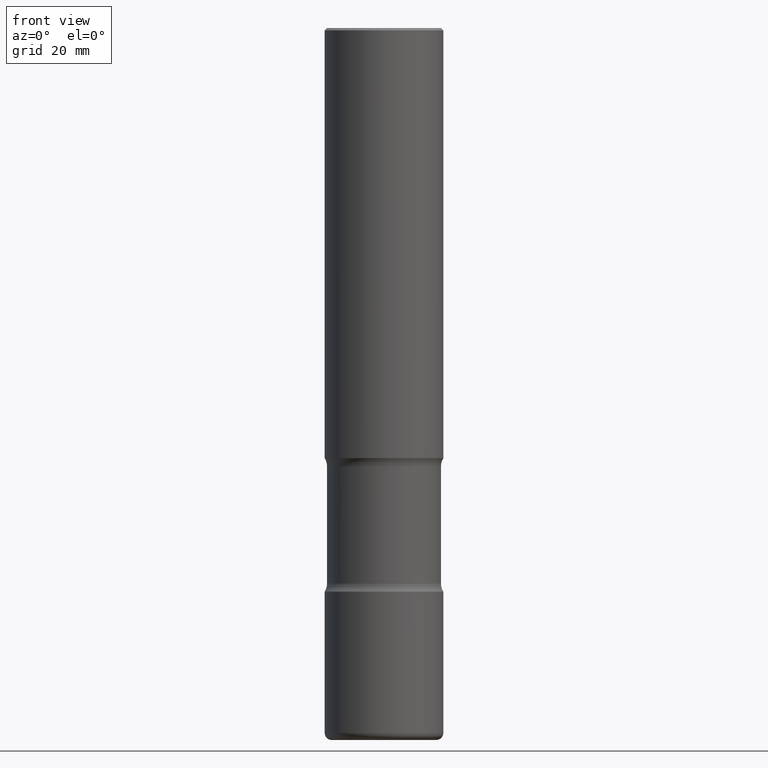
[diagram: clean part render]
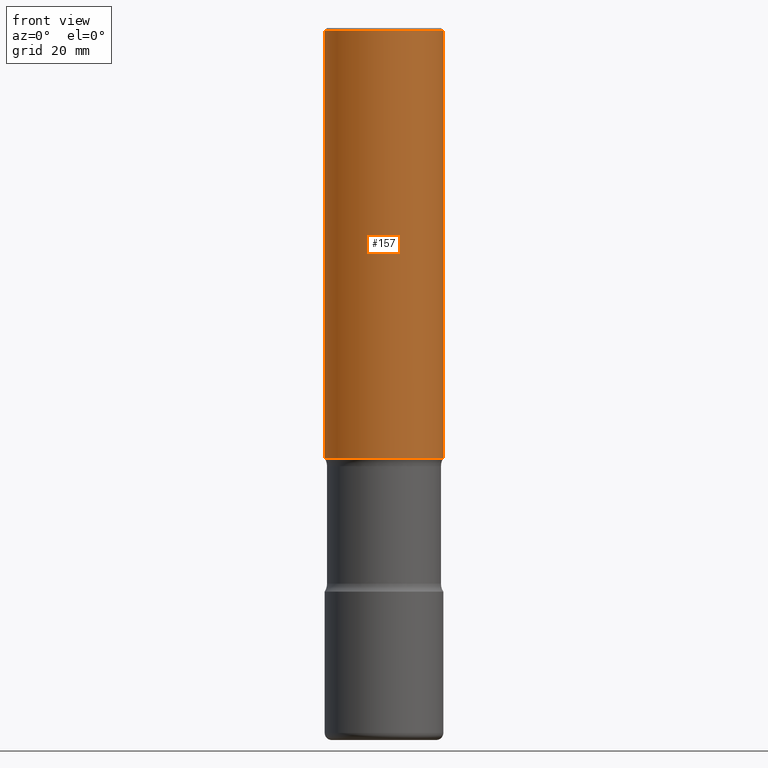
[diagram: same view with one face highlighted and labeled with its STEP entity id]
A machine part, front view. The second image highlights one B-rep face of the part: STEP entity #157.
In plain terms, the highlighted cylindrical surface (partial cylindrical patch) has radius 12.7 mm, axis along (-0, 0, 1).
Its self-contained STEP definition (entity closure, byte-faithful):
#9 = FACE_OUTER_BOUND ( 'NONE', #521, .T. ) ;
#31 = ORIENTED_EDGE ( 'NONE', *, *, #644, .T. ) ;
#42 = AXIS2_PLACEMENT_3D ( 'NONE', #443, #727, #351 ) ;
#74 = LINE ( 'NONE', #183, #474 ) ;
#87 = CARTESIAN_POINT ( 'NONE',  ( -0.4999999999999997224, 3.421651712066268085E-15, -0.02000000000000010797 ) ) ;
#104 = CARTESIAN_POINT ( 'NONE',  ( 4.890937612370299433E-31, -6.982962677686328587E-17, -0.02000000000000010797 ) ) ;
#106 = ORIENTED_EDGE ( 'NONE', *, *, #573, .F. ) ;
#107 = AXIS2_PLACEMENT_3D ( 'NONE', #104, #346, #604 ) ;
#157 = ADVANCED_FACE ( 'NONE', ( #9 ), #246, .T. ) ;
#167 = EDGE_CURVE ( 'NONE', #332, #224, #314, .T. ) ;
#183 = CARTESIAN_POINT ( 'NONE',  ( 0.4999999999999998335, -3.491481338843132566E-15, 2.438088387897967336E-29 ) ) ;
#185 = DIRECTION ( 'NONE',  ( 1.000000000000000000, -6.982962677686267499E-15, 4.876176775795936353E-29 ) ) ;
#222 = AXIS2_PLACEMENT_3D ( 'NONE', #371, #487, #185 ) ;
#224 = VERTEX_POINT ( 'NONE', #87 ) ;
#246 = CYLINDRICAL_SURFACE ( 'NONE', #222, 0.4999999999999998335 ) ;
#251 = DIRECTION ( 'NONE',  ( -2.445468806185136877E-29, 3.491481338843145188E-15, 1.000000000000000000 ) ) ;
#273 = VERTEX_POINT ( 'NONE', #708 ) ;
#307 = VECTOR ( 'NONE', #251, 39.37007874015748143 ) ;
#312 = CIRCLE ( 'NONE', #107, 0.4999999999999997224 ) ;
#314 = LINE ( 'NONE', #572, #307 ) ;
#332 = VERTEX_POINT ( 'NONE', #596 ) ;
#346 = DIRECTION ( 'NONE',  ( -2.445468806185136597E-29, 3.491481338843145583E-15, 1.000000000000000000 ) ) ;
#351 = DIRECTION ( 'NONE',  ( 1.000000000000000000, -6.982962677686266711E-15, 0.000000000000000000 ) ) ;
#371 = CARTESIAN_POINT ( 'NONE',  ( 0.000000000000000000, 0.000000000000000000, 0.000000000000000000 ) ) ;
#395 = CIRCLE ( 'NONE', #42, 0.5000000000000000000 ) ;
#411 = ORIENTED_EDGE ( 'NONE', *, *, #167, .F. ) ;
#443 = CARTESIAN_POINT ( 'NONE',  ( 8.864824422421122405E-29, -1.265661985330640574E-14, -3.625000000000000888 ) ) ;
#474 = VECTOR ( 'NONE', #691, 39.37007874015748143 ) ;
#482 = EDGE_CURVE ( 'NONE', #332, #273, #395, .T. ) ;
#487 = DIRECTION ( 'NONE',  ( -2.445468806185136597E-29, 3.491481338843145583E-15, 1.000000000000000000 ) ) ;
#521 = EDGE_LOOP ( 'NONE', ( #411, #597, #31, #106 ) ) ;
#572 = CARTESIAN_POINT ( 'NONE',  ( -0.4999999999999998335, 3.552713678800499746E-15, -2.459467545127452330E-29 ) ) ;
#573 = EDGE_CURVE ( 'NONE', #224, #663, #312, .T. ) ;
#596 = CARTESIAN_POINT ( 'NONE',  ( -0.5000000000000000000, -2.810511061241133592E-15, -3.625000000000000888 ) ) ;
#597 = ORIENTED_EDGE ( 'NONE', *, *, #482, .T. ) ;
#604 = DIRECTION ( 'NONE',  ( 1.000000000000000000, -6.982962677686266711E-15, 0.000000000000000000 ) ) ;
#644 = EDGE_CURVE ( 'NONE', #273, #663, #74, .T. ) ;
#663 = VERTEX_POINT ( 'NONE', #700 ) ;
#691 = DIRECTION ( 'NONE',  ( -2.445468806185136877E-29, 3.491481338843145188E-15, 1.000000000000000000 ) ) ;
#700 = CARTESIAN_POINT ( 'NONE',  ( 0.4999999999999997224, -3.500078625662627502E-15, -0.02000000000000010797 ) ) ;
#708 = CARTESIAN_POINT ( 'NONE',  ( 0.5000000000000000000, -1.614810119214954068E-14, -3.625000000000000888 ) ) ;
#727 = DIRECTION ( 'NONE',  ( -2.445468806185136597E-29, 3.491481338843145583E-15, 1.000000000000000000 ) ) ;